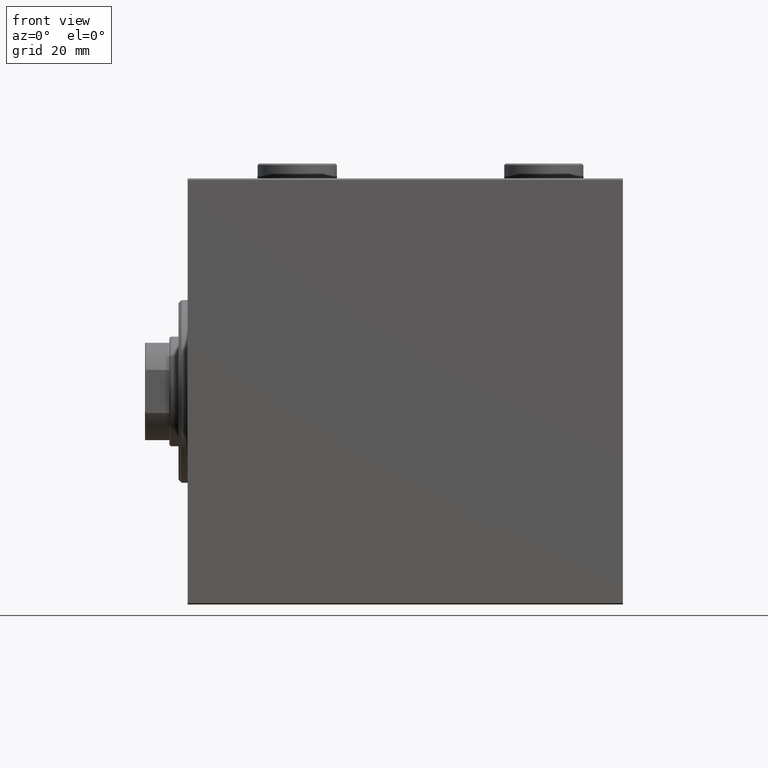
[diagram: clean part render]
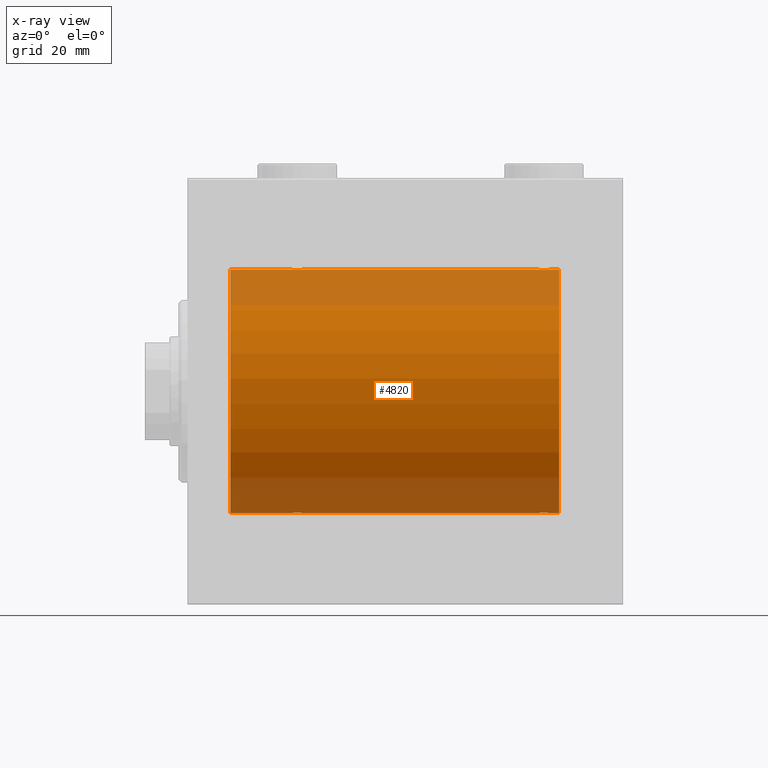
[diagram: x-ray — body ghosted, one internal face saturated and labeled with its STEP entity id]
A machine part, front view, then the same camera in x-ray: the body is ghosted and one INTERNAL B-rep face — a face not visible from any outside direction — is saturated and labeled: STEP entity #4820.
In plain terms, the highlighted cylindrical surface (partial cylindrical patch) has radius 40 mm, axis along (-1, -0, -0).
Its self-contained STEP definition (entity closure, byte-faithful):
#350 = ORIENTED_EDGE ( 'NONE', *, *, #26036, .F. ) ;
#509 = CARTESIAN_POINT ( 'NONE',  ( 119.9810187711092340, -0.3904143323715947300, -39.99856256910220509 ) ) ;
#1048 = CARTESIAN_POINT ( 'NONE',  ( 122.0000000000000000, 4.898587196589412237E-15, -40.00000000000000000 ) ) ;
#1110 = ORIENTED_EDGE ( 'NONE', *, *, #24834, .T. ) ;
#1191 = CARTESIAN_POINT ( 'NONE',  ( 116.8043946892691025, -3.000157693440646867, -39.88732948994960026 ) ) ;
#1250 = DIRECTION ( 'NONE',  ( 0.000000000000000000, 0.000000000000000000, 1.000000000000000000 ) ) ;
#1322 = EDGE_CURVE ( 'NONE', #21625, #30636, #35264, .T. ) ;
#1657 = CARTESIAN_POINT ( 'NONE',  ( 13.99999999999999822, 0.000000000000000000, 0.000000000000000000 ) ) ;
#1874 = B_SPLINE_CURVE_WITH_KNOTS ( 'NONE', 3,
 ( #36941, #16361, #37612, #12461, #2514, #26549, #16598, #37167, #30685, #33696, #30231, #44334, #37839, #44790, #2745, #13587, #45470, #20972, #38063, #16818, #6425, #27448, #13798, #41538, #20520, #34598, #2959, #31583, #21202, #24887, #17040, #30906 ),
 .UNSPECIFIED., .F., .F.,
 ( 4, 2, 2, 2, 2, 2, 2, 2, 2, 2, 2, 2, 2, 2, 2, 4 ),
 ( 0.009382660366305108773, 0.009968941372944144577, 0.01055522237958318038, 0.01114150338622221618, 0.01172778439286125199, 0.01231406539950028606, 0.01290034640613932186, 0.01348662741277835767, 0.01407290841941739347, 0.01465918942605642927, 0.01524547043269546508, 0.01583175143933450088, 0.01641803244597353495, 0.01700431345261257249, 0.01759059445925161003, 0.01876315647252967816 ),
 .UNSPECIFIED. ) ;
#1955 = CARTESIAN_POINT ( 'NONE',  ( 38.25829670320502629, -1.984537326394305801, 39.95097977400578060 ) ) ;
#2173 = CARTESIAN_POINT ( 'NONE',  ( 37.50088468404035069, -2.604941918888316721, 39.91523680494982784 ) ) ;
#2432 = VERTEX_POINT ( 'NONE', #10359 ) ;
#2514 = CARTESIAN_POINT ( 'NONE',  ( 38.84665273013138176, -0.9668189122103330035, -39.98872185468385254 ) ) ;
#2745 = CARTESIAN_POINT ( 'NONE',  ( 36.77869523415741071, -2.903766417398228938, -39.89448096967571189 ) ) ;
#2847 = CARTESIAN_POINT ( 'NONE',  ( 33.30278659419118270, -1.327859336864150475, 39.97836169682017982 ) ) ;
#2898 = ORIENTED_EDGE ( 'NONE', *, *, #1322, .T. ) ;
#2959 = CARTESIAN_POINT ( 'NONE',  ( 33.61748319088535908, -1.833695109615715468, -39.95828327492363741 ) ) ;
#3335 = CARTESIAN_POINT ( 'NONE',  ( 122.0000000000000000, 0.000000000000000000, 40.00000000000000000 ) ) ;
#3625 = CARTESIAN_POINT ( 'NONE',  ( 122.0000000000000000, 4.898587196589412237E-15, -40.00000000000000000 ) ) ;
#4009 = VECTOR ( 'NONE', #4678, 1000.000000000000000 ) ;
#4427 = CARTESIAN_POINT ( 'NONE',  ( 114.6174831908853378, -1.833695109615724350, -39.95828327492363741 ) ) ;
#4678 = DIRECTION ( 'NONE',  ( -1.000000000000000000, -0.000000000000000000, -0.000000000000000000 ) ) ;
#4820 = ADVANCED_FACE ( 'NONE', ( #39316 ), #11375, .F. ) ;
#4840 = VERTEX_POINT ( 'NONE', #16203 ) ;
#4910 = CARTESIAN_POINT ( 'NONE',  ( 122.0000000000000000, 0.000000000000000000, 40.00000000000000000 ) ) ;
#5141 = DIRECTION ( 'NONE',  ( -1.000000000000000000, -0.000000000000000000, -0.000000000000000000 ) ) ;
#5421 = CARTESIAN_POINT ( 'NONE',  ( 36.96489325853513463, -2.847401743820462627, 39.89859630624607689 ) ) ;
#5433 = CARTESIAN_POINT ( 'NONE',  ( 114.6149239908464779, -1.830402106103529380, 39.95843610133493229 ) ) ;
#5561 = VERTEX_POINT ( 'NONE', #18369 ) ;
#5657 = CARTESIAN_POINT ( 'NONE',  ( 118.9813627951422745, -2.261082456166716881, 39.93628274425758207 ) ) ;
#5753 = VECTOR ( 'NONE', #5141, 1000.000000000000000 ) ;
#6086 = CARTESIAN_POINT ( 'NONE',  ( 35.03061658105534804, -2.845855236045349734, 39.89870693240651889 ) ) ;
#6425 = CARTESIAN_POINT ( 'NONE',  ( 35.03510674146484405, -2.847401743820450193, -39.89859630624608400 ) ) ;
#7234 = B_SPLINE_CURVE_WITH_KNOTS ( 'NONE', 3,
 ( #21832, #20183, #37503, #44227, #9571, #30129, #29911, #5433, #19512, #12572, #30576, #15814, #34031, #9346, #41201, #33594, #44005, #8671, #26667, #44686, #37059, #34269, #12356, #37285, #5657, #29672, #23648, #19955, #26443, #37727, #19736, #33809 ),
 .UNSPECIFIED., .F., .F.,
 ( 4, 2, 2, 2, 2, 2, 2, 2, 2, 2, 2, 2, 2, 2, 2, 4 ),
 ( 0.009382660366305098365, 0.009968941372944135904, 0.01055522237958317344, 0.01114150338622220925, 0.01172778439286124678, 0.01231406539950028432, 0.01290034640613932013, 0.01348662741277835767, 0.01407290841941739520, 0.01465918942605643274, 0.01524547043269547028, 0.01583175143933450435, 0.01641803244597354189, 0.01700431345261257943, 0.01759059445925161697, 0.01876315647252969204 ),
 .UNSPECIFIED. ) ;
#7667 = CARTESIAN_POINT ( 'NONE',  ( 114.7417032967949524, -1.984537326394312906, -39.95097977400578060 ) ) ;
#7681 = DIRECTION ( 'NONE',  ( -1.000000000000000000, -0.000000000000000000, -0.000000000000000000 ) ) ;
#8604 = CARTESIAN_POINT ( 'NONE',  ( 117.9693834189446449, -2.845855236045348846, -39.89870693240651178 ) ) ;
#8671 = CARTESIAN_POINT ( 'NONE',  ( 117.1956053107308264, -3.000157693440651752, 39.88732948994960026 ) ) ;
#9002 = DIRECTION ( 'NONE',  ( -1.000000000000000000, -0.000000000000000000, -0.000000000000000000 ) ) ;
#9113 = CARTESIAN_POINT ( 'NONE',  ( 33.01898122889073051, -0.3904143323715977831, 39.99856256910221219 ) ) ;
#9346 = CARTESIAN_POINT ( 'NONE',  ( 116.0306165810553267, -2.845855236045354619, 39.89870693240651178 ) ) ;
#9365 = ORIENTED_EDGE ( 'NONE', *, *, #10845, .F. ) ;
#9571 = CARTESIAN_POINT ( 'NONE',  ( 114.1533472698685898, -0.9668189122103458821, 39.98872185468384544 ) ) ;
#9782 = CARTESIAN_POINT ( 'NONE',  ( 35.22130476584258219, -2.903766417398241373, 39.89448096967571189 ) ) ;
#10012 = CARTESIAN_POINT ( 'NONE',  ( 34.49556917086533758, -2.602909538701760006, 39.91537030566259148 ) ) ;
#10359 = CARTESIAN_POINT ( 'NONE',  ( 13.99999999999999822, 0.000000000000000000, 40.00000000000000000 ) ) ;
#10845 = EDGE_CURVE ( 'NONE', #21625, #43701, #20599, .T. ) ;
#11127 = CARTESIAN_POINT ( 'NONE',  ( 117.3952248345357532, -2.980272303779556431, -39.88883864243169342 ) ) ;
#11310 = CARTESIAN_POINT ( 'NONE',  ( 119.9999999999999858, -2.794909241144302331E-15, 40.00000000000000000 ) ) ;
#11375 = CYLINDRICAL_SURFACE ( 'NONE', #34581, 40.00000000000000000 ) ;
#11589 = CARTESIAN_POINT ( 'NONE',  ( 118.8304482282240144, -2.384933850258111665, -39.92898715513241115 ) ) ;
#11823 = CARTESIAN_POINT ( 'NONE',  ( 114.3046299229155949, -1.331594428131648300, -39.97823692017208685 ) ) ;
#12356 = CARTESIAN_POINT ( 'NONE',  ( 118.5008846840403578, -2.604941918888326935, 39.91523680494982784 ) ) ;
#12461 = CARTESIAN_POINT ( 'NONE',  ( 38.90425173651352253, -0.7773146824710974734, -39.99291453282344122 ) ) ;
#12572 = CARTESIAN_POINT ( 'NONE',  ( 115.0153855218771781, -2.258217541132916395, 39.93644519243652979 ) ) ;
#12735 = LINE ( 'NONE', #29608, #5753 ) ;
#13031 = DIRECTION ( 'NONE',  ( -1.000000000000000000, -0.000000000000000000, -0.000000000000000000 ) ) ;
#13587 = CARTESIAN_POINT ( 'NONE',  ( 36.39522483453575319, -2.980272303779543108, -39.88883864243169342 ) ) ;
#13798 = CARTESIAN_POINT ( 'NONE',  ( 34.49911531595965641, -2.604941918888302954, -39.91523680494983495 ) ) ;
#13899 = CARTESIAN_POINT ( 'NONE',  ( 119.9999999999999858, 4.898587181754971267E-15, -40.00000000000000000 ) ) ;
#14133 = VECTOR ( 'NONE', #32042, 1000.000000000000000 ) ;
#14588 = CARTESIAN_POINT ( 'NONE',  ( 119.8466527301314244, -0.9668189122103406641, -39.98872185468385254 ) ) ;
#15054 = CARTESIAN_POINT ( 'NONE',  ( 115.4991153159596280, -2.604941918888322494, -39.91523680494982784 ) ) ;
#15277 = CARTESIAN_POINT ( 'NONE',  ( 115.0186372048576828, -2.261082456166712884, -39.93628274425758207 ) ) ;
#15510 = CARTESIAN_POINT ( 'NONE',  ( 116.6089030749066353, -2.980812880639904794, -39.88879797994688658 ) ) ;
#15814 = CARTESIAN_POINT ( 'NONE',  ( 115.4955691708653234, -2.602909538701771996, 39.91537030566259148 ) ) ;
#16022 = CARTESIAN_POINT ( 'NONE',  ( 38.60188728128492386, -1.506322235190783232, 39.97196309111974699 ) ) ;
#16023 = EDGE_CURVE ( 'NONE', #4840, #2432, #45111, .T. ) ;
#16203 = CARTESIAN_POINT ( 'NONE',  ( 13.99999999999999822, 4.898587196589412237E-15, -40.00000000000000000 ) ) ;
#16361 = CARTESIAN_POINT ( 'NONE',  ( 38.99999999999999289, -0.1957844162750507766, -40.00000000000000711 ) ) ;
#16383 = EDGE_CURVE ( 'NONE', #5561, #24284, #39777, .T. ) ;
#16479 = CARTESIAN_POINT ( 'NONE',  ( 32.99999999999999289, -1.483492375313373751E-23, 40.00000000000000000 ) ) ;
#16488 = EDGE_CURVE ( 'NONE', #30636, #32018, #44221, .T. ) ;
#16598 = CARTESIAN_POINT ( 'NONE',  ( 38.60433599912082769, -1.502129635934000396, -39.97212271185185983 ) ) ;
#16703 = CARTESIAN_POINT ( 'NONE',  ( 38.38251680911464092, -1.833695109615718799, 39.95828327492363741 ) ) ;
#16818 = CARTESIAN_POINT ( 'NONE',  ( 35.22544321173658943, -2.904869018727214591, -39.89440043036668015 ) ) ;
#17040 = CARTESIAN_POINT ( 'NONE',  ( 33.00000000000000000, -0.3964922677423646791, -40.00000000000002132 ) ) ;
#17249 = ORIENTED_EDGE ( 'NONE', *, *, #25201, .T. ) ;
#17803 = EDGE_LOOP ( 'NONE', ( #9365, #2898, #41056, #17249, #1110, #41677, #44312, #29072, #24857, #350, #34507, #33784 ) ) ;
#17946 = CARTESIAN_POINT ( 'NONE',  ( 39.00000000000000000, 4.071785502645759669E-15, 40.00000000000000000 ) ) ;
#18079 = VECTOR ( 'NONE', #38427, 1000.000000000000000 ) ;
#18289 = CARTESIAN_POINT ( 'NONE',  ( 115.6714635525370340, -2.696981015661936265, -39.90904630908468675 ) ) ;
#18369 = CARTESIAN_POINT ( 'NONE',  ( 32.99999999999999289, -1.483492375313373751E-23, 40.00000000000000000 ) ) ;
#19503 = CARTESIAN_POINT ( 'NONE',  ( 34.16955177177597847, -2.384933850258112553, 39.92898715513240404 ) ) ;
#19512 = CARTESIAN_POINT ( 'NONE',  ( 114.7390238300525596, -1.981471132463181295, 39.95113231465138881 ) ) ;
#19736 = CARTESIAN_POINT ( 'NONE',  ( 120.0000000000000000, -0.3964922677423690645, 40.00000000000000000 ) ) ;
#19944 = CARTESIAN_POINT ( 'NONE',  ( 37.32853644746298016, -2.696981015661931380, 39.90904630908468675 ) ) ;
#19955 = CARTESIAN_POINT ( 'NONE',  ( 119.6018872812849168, -1.506322235190793668, 39.97196309111975410 ) ) ;
#20173 = CARTESIAN_POINT ( 'NONE',  ( 35.79958713980802543, -2.999840380514749327, 39.88735335562824247 ) ) ;
#20183 = CARTESIAN_POINT ( 'NONE',  ( 113.9999999999999716, -0.1957844162750575212, 39.99999999999999289 ) ) ;
#20403 = CARTESIAN_POINT ( 'NONE',  ( 33.09574826348647036, -0.7773146824711035796, 39.99291453282343412 ) ) ;
#20520 = CARTESIAN_POINT ( 'NONE',  ( 34.01863720485771125, -2.261082456166699561, -39.93628274425758917 ) ) ;
#20599 = CIRCLE ( 'NONE', #44226, 40.00000000000000000 ) ;
#20843 = CARTESIAN_POINT ( 'NONE',  ( 119.3850760091535221, -1.830402106103519166, -39.95843610133493229 ) ) ;
#20972 = CARTESIAN_POINT ( 'NONE',  ( 35.80439468926913804, -3.000157693440631324, -39.88732948994960026 ) ) ;
#21076 = CARTESIAN_POINT ( 'NONE',  ( 119.6043359991208490, -1.502129635934005947, -39.97212271185186694 ) ) ;
#21202 = CARTESIAN_POINT ( 'NONE',  ( 33.30462992291564461, -1.331594428131640973, -39.97823692017209396 ) ) ;
#21625 = VERTEX_POINT ( 'NONE', #1048 ) ;
#21759 = CARTESIAN_POINT ( 'NONE',  ( 114.0797382500835084, -0.7903958539027446939, -39.99381900068937057 ) ) ;
#21774 = CARTESIAN_POINT ( 'NONE',  ( 122.0000000000000000, 0.000000000000000000, 0.000000000000000000 ) ) ;
#21832 = CARTESIAN_POINT ( 'NONE',  ( 113.9999999999999716, -1.483492375313373751E-23, 40.00000000000000000 ) ) ;
#21980 = CARTESIAN_POINT ( 'NONE',  ( 113.9999999999999716, -4.239806828413800636E-15, -40.00000000000000000 ) ) ;
#22452 = CARTESIAN_POINT ( 'NONE',  ( 32.99999999999999289, 4.712309501303050243E-15, -40.00000000000000000 ) ) ;
#22685 = CARTESIAN_POINT ( 'NONE',  ( 117.7786952341574391, -2.903766417398244037, -39.89448096967572610 ) ) ;
#23423 = LINE ( 'NONE', #40310, #42280 ) ;
#23634 = CARTESIAN_POINT ( 'NONE',  ( 33.61492399084646365, -1.830402106103521387, 39.95843610133494650 ) ) ;
#23648 = CARTESIAN_POINT ( 'NONE',  ( 119.3825168091146480, -1.833695109615728125, 39.95828327492363741 ) ) ;
#23703 = AXIS2_PLACEMENT_3D ( 'NONE', #1657, #44375, #37423 ) ;
#23870 = CARTESIAN_POINT ( 'NONE',  ( 35.60477516546423971, -2.980272303779553766, 39.88883864243167920 ) ) ;
#24284 = VERTEX_POINT ( 'NONE', #17946 ) ;
#24526 = VERTEX_POINT ( 'NONE', #22452 ) ;
#24834 = EDGE_CURVE ( 'NONE', #37100, #24526, #1874, .T. ) ;
#24857 = ORIENTED_EDGE ( 'NONE', *, *, #16383, .T. ) ;
#24887 = CARTESIAN_POINT ( 'NONE',  ( 33.07973825008353685, -0.7903958539027368113, -39.99381900068937767 ) ) ;
#25201 = EDGE_CURVE ( 'NONE', #32018, #37100, #44111, .T. ) ;
#25807 = CARTESIAN_POINT ( 'NONE',  ( 113.9999999999999716, -1.483492375313373751E-23, 40.00000000000000000 ) ) ;
#25933 = EDGE_CURVE ( 'NONE', #42321, #28290, #7234, .T. ) ;
#26036 = EDGE_CURVE ( 'NONE', #42321, #24284, #23423, .T. ) ;
#26443 = CARTESIAN_POINT ( 'NONE',  ( 119.6953700770843341, -1.331594428131652963, 39.97823692017208685 ) ) ;
#26549 = CARTESIAN_POINT ( 'NONE',  ( 38.69721340580881730, -1.327859336864143147, -39.97836169682019403 ) ) ;
#26667 = CARTESIAN_POINT ( 'NONE',  ( 117.3910969250933221, -2.980812880639910123, 39.88879797994688658 ) ) ;
#26888 = CARTESIAN_POINT ( 'NONE',  ( 34.66775731134134730, -2.695129988695744494, 39.90917164320281074 ) ) ;
#27106 = CARTESIAN_POINT ( 'NONE',  ( 33.73902383005258088, -1.981471132463169971, 39.95113231465138881 ) ) ;
#27448 = CARTESIAN_POINT ( 'NONE',  ( 34.67146355253701984, -2.696981015661916725, -39.90904630908466544 ) ) ;
#28290 = VERTEX_POINT ( 'NONE', #11310 ) ;
#28913 = CARTESIAN_POINT ( 'NONE',  ( 118.5044308291346908, -2.602909538701760450, -39.91537030566259148 ) ) ;
#29072 = ORIENTED_EDGE ( 'NONE', *, *, #43468, .F. ) ;
#29144 = CARTESIAN_POINT ( 'NONE',  ( 115.1730981536758236, -2.387636253591827629, -39.92882473497732576 ) ) ;
#29608 = CARTESIAN_POINT ( 'NONE',  ( 122.0000000000000000, 4.898587196589412237E-15, -40.00000000000000000 ) ) ;
#29672 = CARTESIAN_POINT ( 'NONE',  ( 119.2582967032049766, -1.984537326394317569, 39.95097977400578060 ) ) ;
#29841 = CARTESIAN_POINT ( 'NONE',  ( 116.0351067414648014, -2.847401743820467512, -39.89859630624608400 ) ) ;
#29850 = LINE ( 'NONE', #4910, #4009 ) ;
#29911 = CARTESIAN_POINT ( 'NONE',  ( 114.3956640008791510, -1.502129635934016383, 39.97212271185185983 ) ) ;
#30129 = CARTESIAN_POINT ( 'NONE',  ( 114.3027865941911756, -1.327859336864157358, 39.97836169682016561 ) ) ;
#30231 = CARTESIAN_POINT ( 'NONE',  ( 37.83044822822400022, -2.384933850258100563, -39.92898715513240404 ) ) ;
#30564 = CARTESIAN_POINT ( 'NONE',  ( 36.77455678826340346, -2.904869018727227914, 39.89440043036668726 ) ) ;
#30576 = CARTESIAN_POINT ( 'NONE',  ( 115.1695517717759998, -2.384933850258125876, 39.92898715513240404 ) ) ;
#30636 = VERTEX_POINT ( 'NONE', #13899 ) ;
#30685 = CARTESIAN_POINT ( 'NONE',  ( 38.26097616994740491, -1.981471132463163087, -39.95113231465139592 ) ) ;
#30906 = CARTESIAN_POINT ( 'NONE',  ( 32.99999999999999289, 4.712309501303050243E-15, -40.00000000000000000 ) ) ;
#31468 = CARTESIAN_POINT ( 'NONE',  ( 119.2609761699474262, -1.981471132463164420, -39.95113231465138881 ) ) ;
#31583 = CARTESIAN_POINT ( 'NONE',  ( 33.39811271871507614, -1.506322235190780345, -39.97196309111976120 ) ) ;
#32018 = VERTEX_POINT ( 'NONE', #45566 ) ;
#32042 = DIRECTION ( 'NONE',  ( -1.000000000000000000, -0.000000000000000000, -0.000000000000000000 ) ) ;
#32152 = CARTESIAN_POINT ( 'NONE',  ( 120.0000000000000142, -0.1957844162750523864, -40.00000000000000000 ) ) ;
#33118 = DIRECTION ( 'NONE',  ( -1.000000000000000000, 0.000000000000000000, 0.000000000000000000 ) ) ;
#33581 = CARTESIAN_POINT ( 'NONE',  ( 37.98136279514229585, -2.261082456166707555, 39.93628274425758207 ) ) ;
#33594 = CARTESIAN_POINT ( 'NONE',  ( 116.6047751654642326, -2.980272303779561316, 39.88883864243167920 ) ) ;
#33696 = CARTESIAN_POINT ( 'NONE',  ( 37.98461447812280056, -2.258217541132897743, -39.93644519243654400 ) ) ;
#33784 = ORIENTED_EDGE ( 'NONE', *, *, #45660, .F. ) ;
#33809 = CARTESIAN_POINT ( 'NONE',  ( 119.9999999999999858, -2.794909241144302331E-15, 40.00000000000000000 ) ) ;
#33997 = EDGE_CURVE ( 'NONE', #24526, #4840, #12735, .T. ) ;
#34021 = CARTESIAN_POINT ( 'NONE',  ( 38.92026174991647736, -0.7903958539027394758, 39.99381900068937767 ) ) ;
#34031 = CARTESIAN_POINT ( 'NONE',  ( 115.6677573113413473, -2.695129988695747603, 39.90917164320281785 ) ) ;
#34269 = CARTESIAN_POINT ( 'NONE',  ( 118.3285364474629233, -2.696981015661940262, 39.90904630908467254 ) ) ;
#34479 = CARTESIAN_POINT ( 'NONE',  ( 33.15334726986859692, -0.9668189122103391098, 39.98872185468385254 ) ) ;
#34507 = ORIENTED_EDGE ( 'NONE', *, *, #25933, .T. ) ;
#34581 = AXIS2_PLACEMENT_3D ( 'NONE', #21774, #7681, #43252 ) ;
#34598 = CARTESIAN_POINT ( 'NONE',  ( 33.74170329679496660, -1.984537326394300250, -39.95097977400578060 ) ) ;
#34927 = CARTESIAN_POINT ( 'NONE',  ( 119.6972134058087960, -1.327859336864152251, -39.97836169682017271 ) ) ;
#35264 = LINE ( 'NONE', #3625, #14133 ) ;
#35426 = LINE ( 'NONE', #3335, #18079 ) ;
#36291 = CARTESIAN_POINT ( 'NONE',  ( 114.3981127187150264, -1.506322235190789893, -39.97196309111974699 ) ) ;
#36821 = CARTESIAN_POINT ( 'NONE',  ( 122.0000000000000000, 0.000000000000000000, 0.000000000000000000 ) ) ;
#36941 = CARTESIAN_POINT ( 'NONE',  ( 39.00000000000000000, 4.898587181755365697E-15, -40.00000000000000000 ) ) ;
#37046 = CARTESIAN_POINT ( 'NONE',  ( 33.39566400087917231, -1.502129635934007945, 39.97212271185186694 ) ) ;
#37059 = CARTESIAN_POINT ( 'NONE',  ( 117.9648932585351417, -2.847401743820471065, 39.89859630624608400 ) ) ;
#37100 = VERTEX_POINT ( 'NONE', #44719 ) ;
#37121 = VECTOR ( 'NONE', #9002, 1000.000000000000000 ) ;
#37167 = CARTESIAN_POINT ( 'NONE',  ( 38.38507600915353635, -1.830402106103512505, -39.95843610133492518 ) ) ;
#37285 = CARTESIAN_POINT ( 'NONE',  ( 118.8269018463240911, -2.387636253591832514, 39.92882473497732576 ) ) ;
#37423 = DIRECTION ( 'NONE',  ( 0.000000000000000000, 0.000000000000000000, 1.000000000000000000 ) ) ;
#37492 = CARTESIAN_POINT ( 'NONE',  ( 32.99999999999997158, -0.1957844162750547734, 40.00000000000000000 ) ) ;
#37503 = CARTESIAN_POINT ( 'NONE',  ( 114.0189812288907234, -0.3904143323716007807, 39.99856256910221219 ) ) ;
#37612 = CARTESIAN_POINT ( 'NONE',  ( 38.98101877110926949, -0.3904143323715923986, -39.99856256910221930 ) ) ;
#37716 = CARTESIAN_POINT ( 'NONE',  ( 36.39109692509333627, -2.980812880639903906, 39.88879797994688658 ) ) ;
#37727 = CARTESIAN_POINT ( 'NONE',  ( 119.9202617499164916, -0.7903958539027468033, 39.99381900068937057 ) ) ;
#37839 = CARTESIAN_POINT ( 'NONE',  ( 37.33224268865864559, -2.695129988695734724, -39.90917164320281785 ) ) ;
#38063 = CARTESIAN_POINT ( 'NONE',  ( 35.60890307490667794, -2.980812880639891027, -39.88879797994688658 ) ) ;
#38382 = CARTESIAN_POINT ( 'NONE',  ( 119.9042517365134728, -0.7773146824711011371, -39.99291453282344833 ) ) ;
#38427 = DIRECTION ( 'NONE',  ( -1.000000000000000000, -0.000000000000000000, -0.000000000000000000 ) ) ;
#39070 = CARTESIAN_POINT ( 'NONE',  ( 119.9999999999999858, 4.898587181754971267E-15, -40.00000000000000000 ) ) ;
#39198 = CARTESIAN_POINT ( 'NONE',  ( 122.0000000000000000, 0.000000000000000000, 40.00000000000000000 ) ) ;
#39299 = CARTESIAN_POINT ( 'NONE',  ( 116.2254432117365326, -2.904869018727227914, -39.89440043036668015 ) ) ;
#39316 = FACE_OUTER_BOUND ( 'NONE', #17803, .T. ) ;
#39761 = CARTESIAN_POINT ( 'NONE',  ( 113.9999999999999147, -0.3964922677423722841, -40.00000000000000000 ) ) ;
#39777 = B_SPLINE_CURVE_WITH_KNOTS ( 'NONE', 3,
 ( #16479, #37492, #9113, #20403, #34479, #2847, #37046, #23634, #27106, #41407, #19503, #10012, #26888, #6086, #9782, #23870, #20173, #44216, #37716, #30564, #5421, #19944, #2173, #41646, #33581, #1955, #16703, #16022, #40968, #34021, #41190, #44673 ),
 .UNSPECIFIED., .F., .F.,
 ( 4, 2, 2, 2, 2, 2, 2, 2, 2, 2, 2, 2, 2, 2, 2, 4 ),
 ( 0.009382660366305126121, 0.009968941372944165394, 0.01055522237958320467, 0.01114150338622224221, 0.01172778439286128321, 0.01231406539950032075, 0.01290034640613936176, 0.01348662741277839930, 0.01407290841941744031, 0.01465918942605647958, 0.01524547043269551885, 0.01583175143933455639, 0.01641803244597359740, 0.01700431345261263494, 0.01759059445925167248, 0.01876315647252975102 ),
 .UNSPECIFIED. ) ;
#40238 = CARTESIAN_POINT ( 'NONE',  ( 118.3322426886586385, -2.695129988695742274, -39.90917164320281785 ) ) ;
#40310 = CARTESIAN_POINT ( 'NONE',  ( 122.0000000000000000, 0.000000000000000000, 40.00000000000000000 ) ) ;
#40631 = CARTESIAN_POINT ( 'NONE',  ( 122.0000000000000000, 4.898587196589412237E-15, -40.00000000000000000 ) ) ;
#40968 = CARTESIAN_POINT ( 'NONE',  ( 38.69537007708436249, -1.331594428131642971, 39.97823692017208685 ) ) ;
#41056 = ORIENTED_EDGE ( 'NONE', *, *, #16488, .T. ) ;
#41190 = CARTESIAN_POINT ( 'NONE',  ( 39.00000000000000711, -0.3964922677423716180, 39.99999999999998579 ) ) ;
#41201 = CARTESIAN_POINT ( 'NONE',  ( 116.2213047658425609, -2.903766417398247590, 39.89448096967571189 ) ) ;
#41407 = CARTESIAN_POINT ( 'NONE',  ( 34.01538552187719944, -2.258217541132906181, 39.93644519243653690 ) ) ;
#41538 = CARTESIAN_POINT ( 'NONE',  ( 34.17309815367588044, -2.387636253591807201, -39.92882473497731866 ) ) ;
#41646 = CARTESIAN_POINT ( 'NONE',  ( 37.82690184632410535, -2.387636253591820079, 39.92882473497732576 ) ) ;
#41677 = ORIENTED_EDGE ( 'NONE', *, *, #33997, .T. ) ;
#42280 = VECTOR ( 'NONE', #13031, 1000.000000000000000 ) ;
#42321 = VERTEX_POINT ( 'NONE', #25807 ) ;
#43252 = DIRECTION ( 'NONE',  ( 0.000000000000000000, 0.000000000000000000, 1.000000000000000000 ) ) ;
#43468 = EDGE_CURVE ( 'NONE', #5561, #2432, #29850, .T. ) ;
#43470 = CARTESIAN_POINT ( 'NONE',  ( 117.2004128601919888, -2.999840380514750215, -39.88735335562824957 ) ) ;
#43701 = VERTEX_POINT ( 'NONE', #39198 ) ;
#44005 = CARTESIAN_POINT ( 'NONE',  ( 116.7995871398079970, -2.999840380514755100, 39.88735335562824957 ) ) ;
#44111 = LINE ( 'NONE', #40631, #37121 ) ;
#44216 = CARTESIAN_POINT ( 'NONE',  ( 36.19560531073086196, -3.000157693440644202, 39.88732948994960026 ) ) ;
#44221 = B_SPLINE_CURVE_WITH_KNOTS ( 'NONE', 3,
 ( #39070, #32152, #509, #38382, #14588, #34927, #21076, #20843, #31468, #45570, #11589, #28913, #40238, #8604, #22685, #11127, #43470, #1191, #15510, #39299, #29841, #18289, #15054, #29144, #15277, #7667, #4427, #36291, #11823, #21759, #39761, #21980 ),
 .UNSPECIFIED., .F., .F.,
 ( 4, 2, 2, 2, 2, 2, 2, 2, 2, 2, 2, 2, 2, 2, 2, 4 ),
 ( 0.009382660366305122651, 0.009968941372944160190, 0.01055522237958319946, 0.01114150338622223700, 0.01172778439286127627, 0.01231406539950031381, 0.01290034640613935135, 0.01348662741277838716, 0.01407290841941742469, 0.01465918942605646223, 0.01524547043269549804, 0.01583175143933453557, 0.01641803244597357311, 0.01700431345261261065, 0.01759059445925164819, 0.01876315647252972327 ),
 .UNSPECIFIED. ) ;
#44226 = AXIS2_PLACEMENT_3D ( 'NONE', #36821, #33118, #1250 ) ;
#44227 = CARTESIAN_POINT ( 'NONE',  ( 114.0957482634864419, -0.7773146824711071323, 39.99291453282344833 ) ) ;
#44312 = ORIENTED_EDGE ( 'NONE', *, *, #16023, .T. ) ;
#44334 = CARTESIAN_POINT ( 'NONE',  ( 37.50443082913467663, -2.602909538701746683, -39.91537030566259858 ) ) ;
#44375 = DIRECTION ( 'NONE',  ( -1.000000000000000000, 0.000000000000000000, 0.000000000000000000 ) ) ;
#44673 = CARTESIAN_POINT ( 'NONE',  ( 39.00000000000000000, 4.071785502645759669E-15, 40.00000000000000000 ) ) ;
#44686 = CARTESIAN_POINT ( 'NONE',  ( 117.7745567882633679, -2.904869018727233687, 39.89440043036668726 ) ) ;
#44719 = CARTESIAN_POINT ( 'NONE',  ( 39.00000000000000000, 4.898587181755365697E-15, -40.00000000000000000 ) ) ;
#44790 = CARTESIAN_POINT ( 'NONE',  ( 36.96938341894463065, -2.845855236045339520, -39.89870693240651178 ) ) ;
#45111 = CIRCLE ( 'NONE', #23703, 40.00000000000000000 ) ;
#45470 = CARTESIAN_POINT ( 'NONE',  ( 36.20041286019198168, -2.999840380514735116, -39.88735335562824957 ) ) ;
#45566 = CARTESIAN_POINT ( 'NONE',  ( 113.9999999999999716, -4.239806828413800636E-15, -40.00000000000000000 ) ) ;
#45570 = CARTESIAN_POINT ( 'NONE',  ( 118.9846144781227650, -2.258217541132900408, -39.93644519243653690 ) ) ;
#45660 = EDGE_CURVE ( 'NONE', #43701, #28290, #35426, .T. ) ;